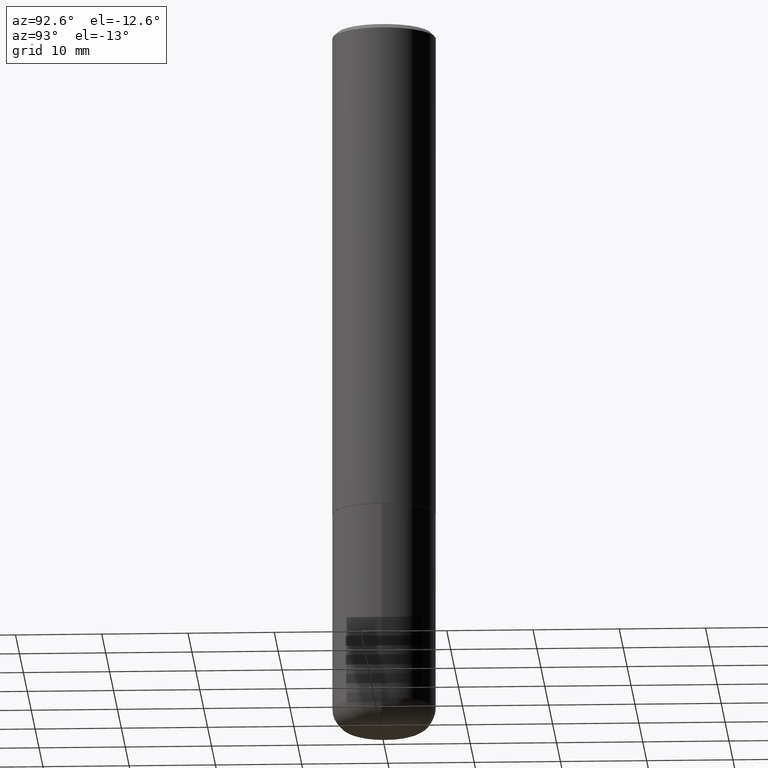
[diagram: clean part render]
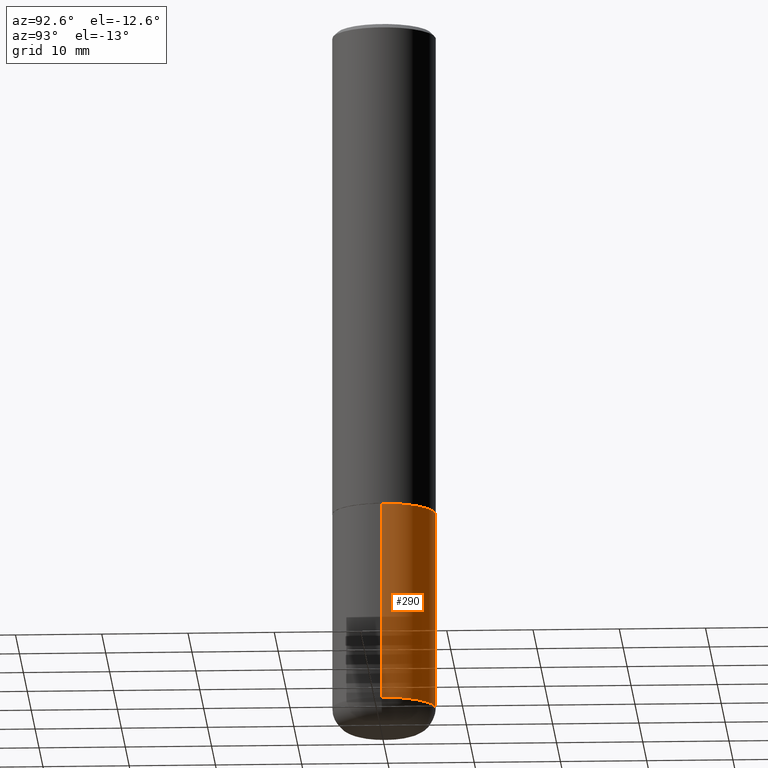
[diagram: same view with one face highlighted and labeled with its STEP entity id]
A machine part, auxiliary view. The second image highlights one B-rep face of the part: STEP entity #290.
In plain terms, the highlighted cylindrical surface (partial cylindrical patch) has radius 5.9995 mm, axis along (-0, 0, 1).
Its self-contained STEP definition (entity closure, byte-faithful):
#3 = DIRECTION ( 'NONE',  ( -2.445468806185136597E-29, 3.491481338843145583E-15, 1.000000000000000000 ) ) ;
#11 = EDGE_LOOP ( 'NONE', ( #208, #395, #271, #205 ) ) ;
#34 = VECTOR ( 'NONE', #400, 39.37007874015748143 ) ;
#41 = DIRECTION ( 'NONE',  ( 1.000000000000000000, -6.982962677686266711E-15, 4.876176775795936353E-29 ) ) ;
#56 = DIRECTION ( 'NONE',  ( 1.000000000000000000, -6.982962677686265133E-15, 0.000000000000000000 ) ) ;
#57 = AXIS2_PLACEMENT_3D ( 'NONE', #72, #3, #41 ) ;
#66 = CARTESIAN_POINT ( 'NONE',  ( 0.2361999999999999933, -1.264614540928986883E-14, -3.149600000000000399 ) ) ;
#72 = CARTESIAN_POINT ( 'NONE',  ( 0.000000000000000000, 0.000000000000000000, 0.000000000000000000 ) ) ;
#75 = VERTEX_POINT ( 'NONE', #117 ) ;
#78 = CIRCLE ( 'NONE', #287, 0.2361999999999999933 ) ;
#82 = VERTEX_POINT ( 'NONE', #124 ) ;
#97 = DIRECTION ( 'NONE',  ( -2.445468806185136597E-29, 3.491481338843145583E-15, 1.000000000000000000 ) ) ;
#102 = DIRECTION ( 'NONE',  ( -2.445468806185136597E-29, 3.491481338843145583E-15, 1.000000000000000000 ) ) ;
#117 = CARTESIAN_POINT ( 'NONE',  ( 0.2362000000000000210, -9.484609056967400443E-15, -2.244100000000000428 ) ) ;
#124 = CARTESIAN_POINT ( 'NONE',  ( -0.2362000000000000766, -7.737699506793781719E-15, -2.244100000000000428 ) ) ;
#126 = EDGE_CURVE ( 'NONE', #281, #361, #78, .T. ) ;
#132 = CIRCLE ( 'NONE', #333, 0.2362000000000000210 ) ;
#141 = EDGE_CURVE ( 'NONE', #361, #82, #158, .T. ) ;
#158 = LINE ( 'NONE', #225, #194 ) ;
#160 = DIRECTION ( 'NONE',  ( -2.445468806185136877E-29, 3.491481338843145188E-15, 1.000000000000000000 ) ) ;
#194 = VECTOR ( 'NONE', #160, 39.37007874015748143 ) ;
#205 = ORIENTED_EDGE ( 'NONE', *, *, #259, .F. ) ;
#207 = LINE ( 'NONE', #291, #34 ) ;
#208 = ORIENTED_EDGE ( 'NONE', *, *, #126, .T. ) ;
#225 = CARTESIAN_POINT ( 'NONE',  ( -0.2361999999999999933, 1.678301941865356591E-15, -1.161852468318208757E-29 ) ) ;
#259 = EDGE_CURVE ( 'NONE', #281, #75, #207, .T. ) ;
#262 = FACE_OUTER_BOUND ( 'NONE', #11, .T. ) ;
#264 = CARTESIAN_POINT ( 'NONE',  ( -0.2361999999999999933, -9.318467682955017493E-15, -3.149600000000000399 ) ) ;
#271 = ORIENTED_EDGE ( 'NONE', *, *, #273, .F. ) ;
#273 = EDGE_CURVE ( 'NONE', #75, #82, #132, .T. ) ;
#281 = VERTEX_POINT ( 'NONE', #66 ) ;
#285 = CARTESIAN_POINT ( 'NONE',  ( 7.702248551960706711E-29, -1.099676962482037231E-14, -3.149600000000000399 ) ) ;
#287 = AXIS2_PLACEMENT_3D ( 'NONE', #285, #97, #56 ) ;
#290 = ADVANCED_FACE ( 'NONE', ( #262 ), #365, .T. ) ;
#291 = CARTESIAN_POINT ( 'NONE',  ( 0.2361999999999999933, -1.649375784469496131E-15, 1.151752954443000088E-29 ) ) ;
#323 = CARTESIAN_POINT ( 'NONE',  ( 5.487876547960065873E-29, -7.835233272497903917E-15, -2.244100000000000428 ) ) ;
#325 = DIRECTION ( 'NONE',  ( 1.000000000000000000, -6.982962677686268288E-15, 0.000000000000000000 ) ) ;
#333 = AXIS2_PLACEMENT_3D ( 'NONE', #323, #102, #325 ) ;
#361 = VERTEX_POINT ( 'NONE', #264 ) ;
#365 = CYLINDRICAL_SURFACE ( 'NONE', #57, 0.2361999999999999933 ) ;
#395 = ORIENTED_EDGE ( 'NONE', *, *, #141, .T. ) ;
#400 = DIRECTION ( 'NONE',  ( -2.445468806185136877E-29, 3.491481338843145188E-15, 1.000000000000000000 ) ) ;